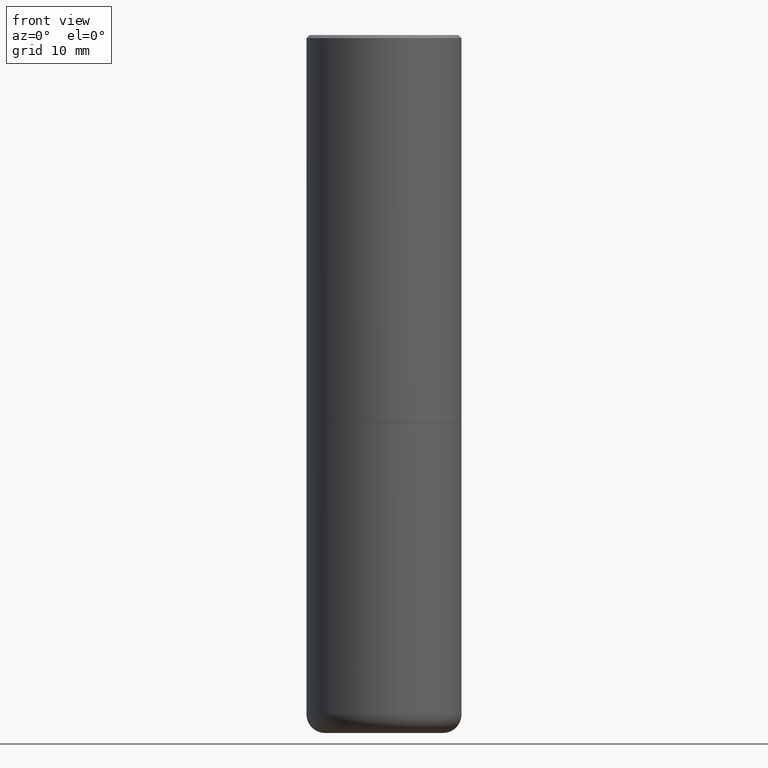
[diagram: clean part render]
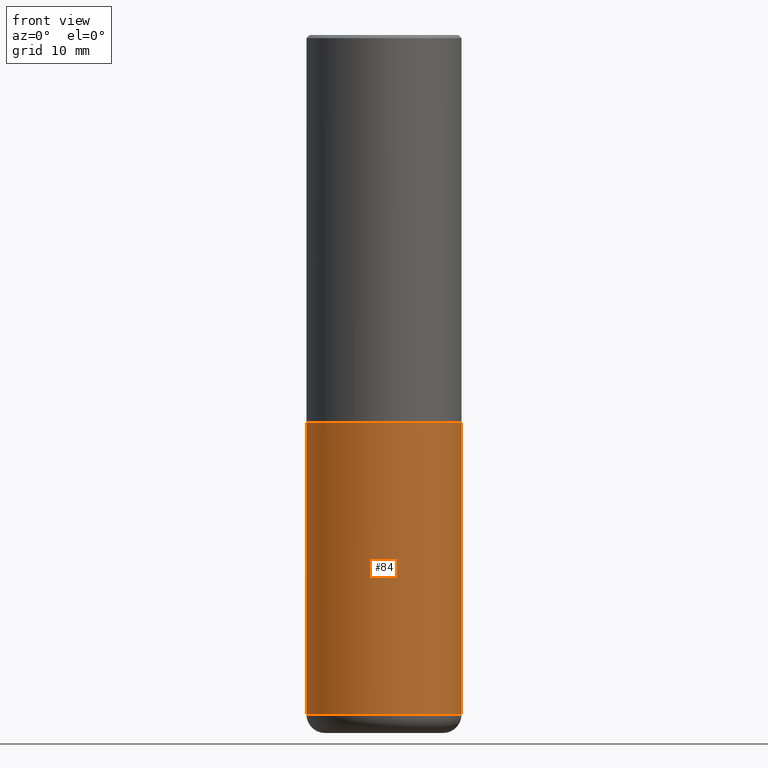
[diagram: same view with one face highlighted and labeled with its STEP entity id]
A machine part, front view. The second image highlights one B-rep face of the part: STEP entity #84.
In plain terms, the highlighted cylindrical surface (partial cylindrical patch) has radius 12.7 mm, axis along (-0, 0, 1).
Its self-contained STEP definition (entity closure, byte-faithful):
#2 = VECTOR ( 'NONE', #333, 39.37007874015748143 ) ;
#5 = CARTESIAN_POINT ( 'NONE',  ( -0.4999999999999998335, -1.173997458533247776E-14, -4.379999999999999893 ) ) ;
#7 = CARTESIAN_POINT ( 'NONE',  ( 0.000000000000000000, 0.000000000000000000, 0.000000000000000000 ) ) ;
#49 = CARTESIAN_POINT ( 'NONE',  ( 1.071115337109089838E-28, -1.529268826413297711E-14, -4.379999999999999893 ) ) ;
#79 = VERTEX_POINT ( 'NONE', #321 ) ;
#84 = ADVANCED_FACE ( 'NONE', ( #286 ), #92, .T. ) ;
#92 = CYLINDRICAL_SURFACE ( 'NONE', #232, 0.5000000000000000000 ) ;
#105 = CARTESIAN_POINT ( 'NONE',  ( -0.5000000000000000000, 3.552713678800500929E-15, -2.459467545127452891E-29 ) ) ;
#106 = EDGE_CURVE ( 'NONE', #307, #245, #380, .T. ) ;
#113 = LINE ( 'NONE', #105, #259 ) ;
#127 = DIRECTION ( 'NONE',  ( -2.445468806185136597E-29, 3.491481338843145583E-15, 1.000000000000000000 ) ) ;
#135 = DIRECTION ( 'NONE',  ( -2.445468806185136597E-29, 3.491481338843145583E-15, 1.000000000000000000 ) ) ;
#165 = ORIENTED_EDGE ( 'NONE', *, *, #382, .T. ) ;
#171 = CIRCLE ( 'NONE', #179, 0.5000000000000001110 ) ;
#179 = AXIS2_PLACEMENT_3D ( 'NONE', #49, #255, #320 ) ;
#189 = CARTESIAN_POINT ( 'NONE',  ( 6.113672015462842613E-29, -8.728703347107864943E-15, -2.500000000000000000 ) ) ;
#192 = CARTESIAN_POINT ( 'NONE',  ( -0.5000000000000000000, -8.457982126819920096E-15, -2.500000000000000000 ) ) ;
#197 = EDGE_CURVE ( 'NONE', #304, #307, #113, .T. ) ;
#202 = LINE ( 'NONE', #365, #2 ) ;
#213 = ORIENTED_EDGE ( 'NONE', *, *, #296, .T. ) ;
#232 = AXIS2_PLACEMENT_3D ( 'NONE', #7, #135, #290 ) ;
#245 = VERTEX_POINT ( 'NONE', #298 ) ;
#255 = DIRECTION ( 'NONE',  ( -2.445468806185136597E-29, 3.491481338843145583E-15, 1.000000000000000000 ) ) ;
#259 = VECTOR ( 'NONE', #302, 39.37007874015748143 ) ;
#286 = FACE_OUTER_BOUND ( 'NONE', #351, .T. ) ;
#290 = DIRECTION ( 'NONE',  ( 1.000000000000000000, -6.982962677686266711E-15, 4.876176775795935793E-29 ) ) ;
#296 = EDGE_CURVE ( 'NONE', #304, #79, #171, .T. ) ;
#298 = CARTESIAN_POINT ( 'NONE',  ( 0.5000000000000000000, -1.222018468595099830E-14, -2.500000000000000000 ) ) ;
#302 = DIRECTION ( 'NONE',  ( -2.445468806185136877E-29, 3.491481338843145188E-15, 1.000000000000000000 ) ) ;
#304 = VERTEX_POINT ( 'NONE', #5 ) ;
#307 = VERTEX_POINT ( 'NONE', #192 ) ;
#320 = DIRECTION ( 'NONE',  ( 1.000000000000000000, -6.982962677686269077E-15, 0.000000000000000000 ) ) ;
#321 = CARTESIAN_POINT ( 'NONE',  ( 0.4999999999999998335, -1.878416960297611046E-14, -4.379999999999999893 ) ) ;
#322 = DIRECTION ( 'NONE',  ( 1.000000000000000000, -6.982962677686269077E-15, 0.000000000000000000 ) ) ;
#324 = AXIS2_PLACEMENT_3D ( 'NONE', #189, #127, #322 ) ;
#333 = DIRECTION ( 'NONE',  ( -2.445468806185136877E-29, 3.491481338843145188E-15, 1.000000000000000000 ) ) ;
#340 = ORIENTED_EDGE ( 'NONE', *, *, #197, .F. ) ;
#351 = EDGE_LOOP ( 'NONE', ( #340, #213, #165, #409 ) ) ;
#365 = CARTESIAN_POINT ( 'NONE',  ( 0.5000000000000000000, -3.491481338843133355E-15, 2.438088387897967896E-29 ) ) ;
#380 = CIRCLE ( 'NONE', #324, 0.5000000000000000000 ) ;
#382 = EDGE_CURVE ( 'NONE', #79, #245, #202, .T. ) ;
#409 = ORIENTED_EDGE ( 'NONE', *, *, #106, .F. ) ;